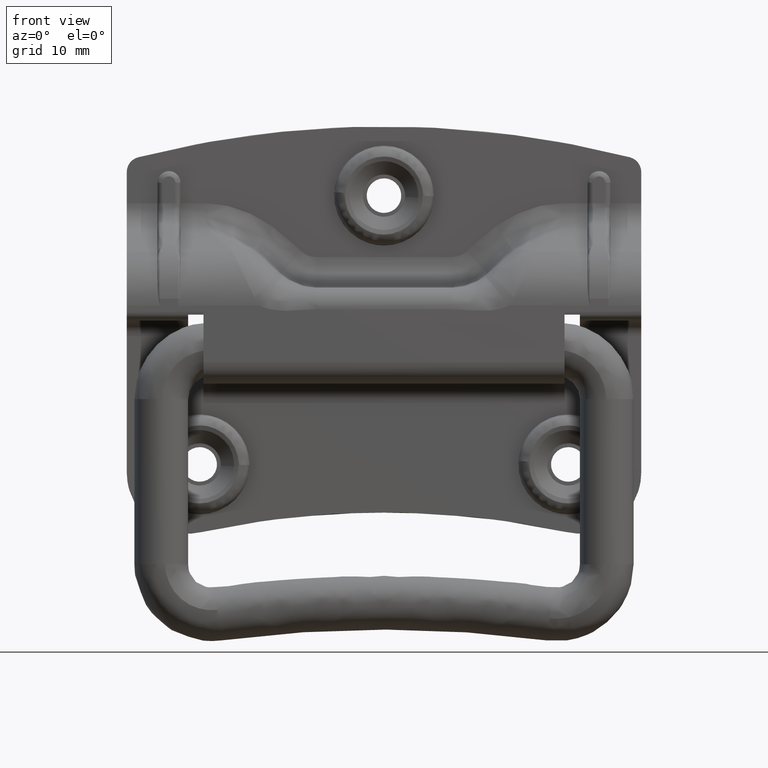
[diagram: clean part render]
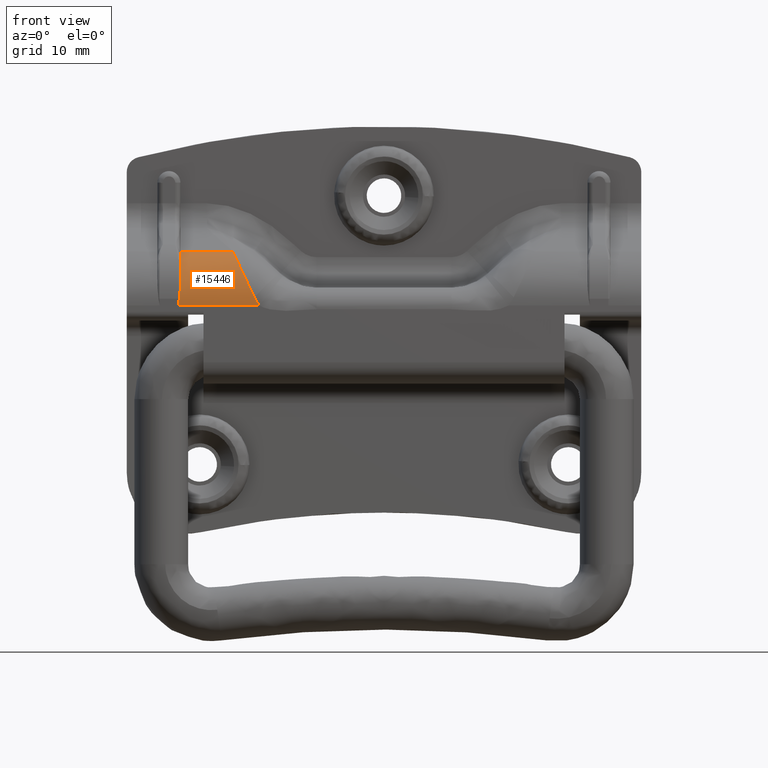
[diagram: same view with one face highlighted and labeled with its STEP entity id]
A machine part, front view. The second image highlights one B-rep face of the part: STEP entity #15446.
In plain terms, the highlighted face is a freeform B-spline surface patch.
Its self-contained STEP definition (entity closure, byte-faithful):
#6541=CARTESIAN_POINT('',(-26.500000000000000,-3.615302368088985,9.103214285714520));
#6542=VERTEX_POINT('',#6541);
#6543=CARTESIAN_POINT('',(-26.644231262890798,-4.256390523497631,6.575000000000810));
#6544=VERTEX_POINT('',#6543);
#6545=CARTESIAN_POINT('',(-26.500000000000000,-3.615302368088985,9.103214285714520));
#6546=CARTESIAN_POINT('',(-26.499999999988749,-3.699956151493318,8.901348933946297));
#6547=CARTESIAN_POINT('',(-26.502135214498342,-3.777016417174644,8.696472900695326));
#6548=CARTESIAN_POINT('',(-26.511241512816689,-3.915672809004809,8.281530899787349));
#6549=CARTESIAN_POINT('',(-26.518174333967760,-3.977078399700583,8.072067136352068));
#6550=CARTESIAN_POINT('',(-26.533197857433390,-4.057397503909689,7.754954533216987));
#6551=CARTESIAN_POINT('',(-26.538984302818260,-4.082203610941913,7.648763982447141));
#6552=CARTESIAN_POINT('',(-26.552482915194709,-4.127873549748824,7.435424411633112));
#6553=CARTESIAN_POINT('',(-26.560195080289891,-4.148750149601733,7.328192497888260));
#6554=CARTESIAN_POINT('',(-26.578146166087670,-4.186438520069333,7.113391593816514));
#6555=CARTESIAN_POINT('',(-26.588360731188889,-4.203260943703769,7.005786009633042));
#6556=CARTESIAN_POINT('',(-26.612633078298948,-4.232873618984014,6.790296524806786));
#6557=CARTESIAN_POINT('',(-26.626560838249318,-4.245654948356108,6.682434158210516));
#6558=CARTESIAN_POINT('',(-26.644231262890749,-4.256390523497633,6.575000000000802));
#6559=B_SPLINE_CURVE_WITH_KNOTS('',3,(#6545,#6546,#6547,#6548,#6549,#6550,#6551,#6552,#6553,#6554,#6555,#6556,#6557,#6558),.UNSPECIFIED.,.F.,.U.,(4,2,2,2,2,2,4),(0.0,0.250000000000000,0.500000000000000,0.625000000000000,0.750000000000000,0.875000000000000,1.0),.UNSPECIFIED.);
#6560=EDGE_CURVE('',#6542,#6544,#6559,.T.);
#6621=CARTESIAN_POINT('',(-26.800000000000001,-4.300000000000000,5.700000000000300));
#6622=VERTEX_POINT('',#6621);
#6628=CARTESIAN_POINT('',(-26.644231262890798,-4.256390523497631,6.575000000000810));
#6629=CARTESIAN_POINT('',(-26.668202099176149,-4.270953881162660,6.429260060517054));
#6630=CARTESIAN_POINT('',(-26.693683101315639,-4.281844790416884,6.283541951237744));
#6631=CARTESIAN_POINT('',(-26.746105381607581,-4.296369935957300,5.991881965206690));
#6632=CARTESIAN_POINT('',(-26.773069421022520,-4.299999999999999,5.845858975933290));
#6633=CARTESIAN_POINT('',(-26.800000000000001,-4.300000000000000,5.700000000000300));
#6634=B_SPLINE_CURVE_WITH_KNOTS('',3,(#6628,#6629,#6630,#6631,#6632,#6633),.UNSPECIFIED.,.F.,.U.,(4,2,4),(0.0,0.500000000000000,1.0),.UNSPECIFIED.);
#6635=EDGE_CURVE('',#6544,#6622,#6634,.T.);
#7666=CARTESIAN_POINT('',(-26.500000000000000,-0.779999747681742,12.740000189239000));
#7667=VERTEX_POINT('',#7666);
#12924=CARTESIAN_POINT('',(-16.249751323510448,-4.300000000000000,5.699398415003820));
#12925=VERTEX_POINT('',#12924);
#13025=CARTESIAN_POINT('',(-16.885878831627998,-4.236918568168770,6.751786068166150));
#13026=VERTEX_POINT('',#13025);
#13040=CARTESIAN_POINT('',(-16.249751323510448,-4.300000000000000,5.699398415003820));
#13041=CARTESIAN_POINT('',(-16.308392844801059,-4.299428518117377,5.777194987901406));
#13042=CARTESIAN_POINT('',(-16.427733573369970,-4.298265501491354,5.935517955747906));
#13043=CARTESIAN_POINT('',(-16.590273426796280,-4.287410120037310,6.191080115637108));
#13044=CARTESIAN_POINT('',(-16.745677631585000,-4.268764263390168,6.463624834563840));
#13045=CARTESIAN_POINT('',(-16.838552055825861,-4.247668505241664,6.654513419334454));
#13046=CARTESIAN_POINT('',(-16.885878831627998,-4.236918568168770,6.751786068166150));
#13047=B_SPLINE_CURVE_WITH_KNOTS('',3,(#13040,#13041,#13042,#13043,#13044,#13045,#13046),.UNSPECIFIED.,.F.,.U.,(4,1,1,1,4),(0.0,0.236707691340347,0.481721273949093,0.735896493880600,1.000000000000000),.UNSPECIFIED.);
#13048=EDGE_CURVE('',#12925,#13026,#13047,.T.);
#13134=CARTESIAN_POINT('',(-19.706752196111751,-0.779999747681742,12.740000189239000));
#13135=VERTEX_POINT('',#13134);
#13149=CARTESIAN_POINT('',(-16.885878831628030,-4.236918568168769,6.751786068166158));
#13150=CARTESIAN_POINT('',(-18.644164055835432,-3.787581552993378,10.484314031858808));
#13151=CARTESIAN_POINT('',(-19.706752196111751,-0.779999747681742,12.740000189239000));
#13159=(BOUNDED_CURVE()B_SPLINE_CURVE(2,(#13149,#13150,#13151),.UNSPECIFIED.,.F.,.U.)CURVE()GEOMETRIC_REPRESENTATION_ITEM()QUASI_UNIFORM_CURVE()RATIONAL_B_SPLINE_CURVE((1.0,0.919596617638155,1.0))REPRESENTATION_ITEM(''));
#13160=EDGE_CURVE('',#13026,#13135,#13159,.T.);
#13399=CARTESIAN_POINT('',(-26.500000000000000,-0.779999747681735,12.740000189238989));
#13400=CARTESIAN_POINT('',(-26.500000000000004,-2.691339501556318,11.306495480870051));
#13401=CARTESIAN_POINT('',(-26.500000000000000,-3.615302368088983,9.103214285714524));
#13409=(BOUNDED_CURVE()B_SPLINE_CURVE(2,(#13399,#13400,#13401),.UNSPECIFIED.,.F.,.U.)CURVE()GEOMETRIC_REPRESENTATION_ITEM()QUASI_UNIFORM_CURVE()RATIONAL_B_SPLINE_CURVE((1.0,0.965064549475678,1.0))REPRESENTATION_ITEM(''));
#13410=EDGE_CURVE('',#7667,#6542,#13409,.T.);
#15136=CARTESIAN_POINT('',(-16.249751323510448,-4.300000000000000,5.699398415003820));
#15137=CARTESIAN_POINT('',(-26.800000000000001,-4.300000000000000,5.700000000000300));
#15138=QUASI_UNIFORM_CURVE('',1,(#15136,#15137),.UNSPECIFIED.,.F.,.U.);
#15139=EDGE_CURVE('',#12925,#6622,#15138,.T.);
#15211=CARTESIAN_POINT('',(-19.706752196111751,-0.779999747681742,12.740000189239000));
#15212=CARTESIAN_POINT('',(-26.500000000000000,-0.779999747681742,12.740000189239000));
#15213=QUASI_UNIFORM_CURVE('',1,(#15211,#15212),.UNSPECIFIED.,.F.,.U.);
#15214=EDGE_CURVE('',#13135,#7667,#15213,.T.);
#15423=CARTESIAN_POINT('',(-15.985995106598210,-0.484870655240774,12.951969701434480));
#15424=CARTESIAN_POINT('',(-27.070350122335039,-0.484870655240774,12.951969701434480));
#15425=CARTESIAN_POINT('',(-15.985995106598207,-4.509488104641529,10.185521653792996));
#15426=CARTESIAN_POINT('',(-27.070350122335043,-4.509488104641529,10.185521653792996));
#15427=CARTESIAN_POINT('',(-15.985995106598208,-4.291205626718647,5.306676178257590));
#15428=CARTESIAN_POINT('',(-27.070350122335039,-4.291205626718647,5.306676178257590));
#15436=(BOUNDED_SURFACE()B_SPLINE_SURFACE(1,2,((#15423,#15425,#15427),(#15424,#15426,#15428)),.UNSPECIFIED.,.F.,.F.,.U.)B_SPLINE_SURFACE_WITH_KNOTS((2,2),(3,3),(0.0,11.084355015736840),(0.0,9.112767642265668),.UNSPECIFIED.)GEOMETRIC_REPRESENTATION_ITEM()RATIONAL_B_SPLINE_SURFACE(((1.0,0.870546693504771,0.991262583796435),(1.0,0.870546693504771,0.991262583796435)))REPRESENTATION_ITEM('')SURFACE());
#15437=ORIENTED_EDGE('',*,*,#15139,.F.);
#15438=ORIENTED_EDGE('',*,*,#13048,.T.);
#15439=ORIENTED_EDGE('',*,*,#13160,.T.);
#15440=ORIENTED_EDGE('',*,*,#15214,.T.);
#15441=ORIENTED_EDGE('',*,*,#13410,.T.);
#15442=ORIENTED_EDGE('',*,*,#6560,.T.);
#15443=ORIENTED_EDGE('',*,*,#6635,.T.);
#15444=EDGE_LOOP('',(#15437,#15438,#15439,#15440,#15441,#15442,#15443));
#15445=FACE_OUTER_BOUND('',#15444,.T.);
#15446=ADVANCED_FACE('',(#15445),#15436,.T.);